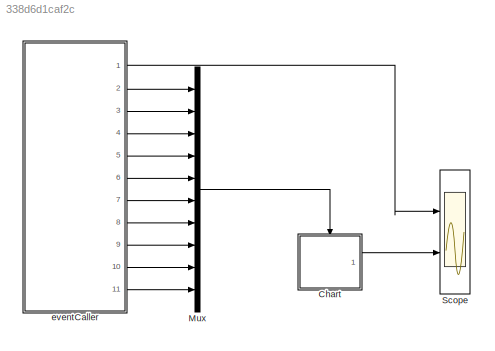
MODEL slx_338d6d1caf2c
KIND model
CONFIG AbsTol = auto
CONFIG EnableMultiTasking = on
CONFIG FixedStep = 0.1
CONFIG MaxStep = auto
CONFIG MinStep = auto
CONFIG RelTol = 1e-3
CONFIG SampleTimeConstraint = Unconstrained
CONFIG Solver = FixedStepDiscrete
CONFIG SolverName = FixedStepDiscrete
CONFIG StartTime = 0.0
CONFIG StopTime = 30.0
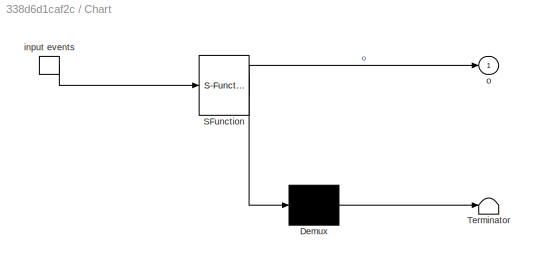
BLOCK [SubSystem] Chart
  ErrorFcn = Stateflow.Translate.translate
  PermitHierarchicalResolution = ExplicitOnly
  Ports = [0, 1, 0, 1]
  RequestExecContextInheritance = off
  SFBlockType = Chart
  TreatAsAtomicUnit = on
  Variant = off
BLOCK [Demux] Chart/ Demux 
  Outputs = 1
  Ports = [1, 1]
BLOCK [S-Function] Chart/ SFunction 
  EnableBusSupport = on
  FunctionName = sf_sfun
  PortCounts = [1 2]
  Ports = [1, 2]
  SFcnIsStateOwnerBlock = off
  SFunctionDeploymentMode = off
  Tag = Stateflow S-Function compstate 3
BLOCK [Terminator] Chart/ Terminator 
BLOCK [TriggerPort] Chart/input events
  Ports = [0, 1]
  ShowOutputPort = on
  StatesWhenEnabling = held
  TriggerType = function-call
  VariantControl = Variant
BLOCK [Outport] Chart/o
  IconDisplay = Port number
BLOCK [Mux] Mux
  DisplayOption = bar
  Inputs = 10
  Ports = [10, 1]
BLOCK [Scope] Scope
  NumInputPorts = 2
  Ports = [2]
  ScopeSpecificationString = Simulink.scopes.TimeScopeBlockCfg('CurrentConfiguration', extmgr.ConfigurationSet(extmgr.Configuration('Core','General UI',true),extmgr.Configuration('Core','Source UI',true),extmgr.Configuration('Sources','WiredSimulink',true),extmgr.Configuration('Visuals','Time Domain',true,'SerializedDisplays',{struct('MinYLimReal','-1.625','MaxYLimReal','14.625','YLabelReal','','MinYLimMag','0.00000','MaxYLim...<+1360ch>
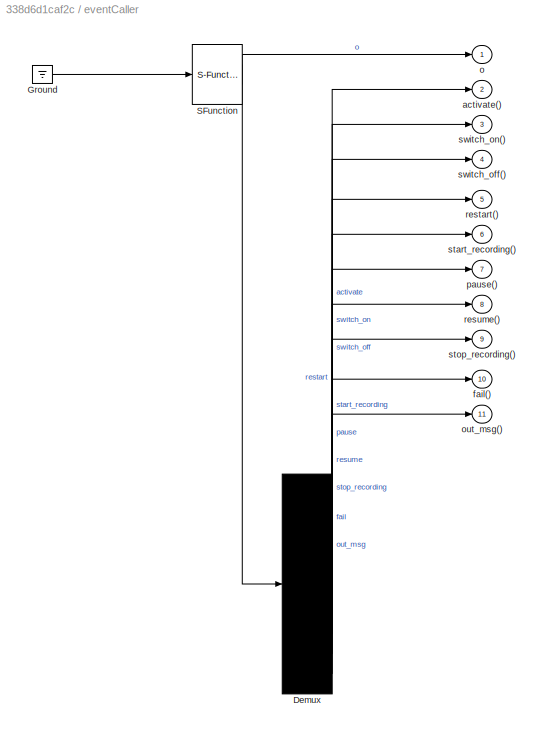
BLOCK [SubSystem] eventCaller
  ErrorFcn = Stateflow.Translate.translate
  PermitHierarchicalResolution = ExplicitOnly
  Ports = [0, 11]
  RequestExecContextInheritance = off
  SFBlockType = Chart
  TreatAsAtomicUnit = on
  Variant = off
BLOCK [Demux] eventCaller/ Demux 
  Outputs = 10
  Ports = [1, 10]
BLOCK [Ground] eventCaller/ Ground 
BLOCK [S-Function] eventCaller/ SFunction 
  EnableBusSupport = on
  FunctionName = sf_sfun
  PortCounts = [1 2]
  Ports = [1, 2]
  SFcnIsStateOwnerBlock = off
  SFunctionDeploymentMode = off
  Tag = Stateflow S-Function compstate 1
BLOCK [Outport] eventCaller/activate()
  IconDisplay = Port number
  Port = 2
BLOCK [Outport] eventCaller/fail()
  IconDisplay = Port number
  Port = 10
BLOCK [Outport] eventCaller/o
  IconDisplay = Port number
BLOCK [Outport] eventCaller/out_msg()
  IconDisplay = Port number
  Port = 11
BLOCK [Outport] eventCaller/pause()
  IconDisplay = Port number
  Port = 7
BLOCK [Outport] eventCaller/restart()
  IconDisplay = Port number
  Port = 5
BLOCK [Outport] eventCaller/resume()
  IconDisplay = Port number
  Port = 8
BLOCK [Outport] eventCaller/start_recording()
  IconDisplay = Port number
  Port = 6
BLOCK [Outport] eventCaller/stop_recording()
  IconDisplay = Port number
  Port = 9
BLOCK [Outport] eventCaller/switch_off()
  IconDisplay = Port number
  Port = 4
BLOCK [Outport] eventCaller/switch_on()
  IconDisplay = Port number
  Port = 3
LINE Chart:1 -> Scope:2
LINE Mux:1 -> Chart:trigger
LINE eventCaller:1 -> Scope:1
LINE eventCaller:10 -> Mux:9
LINE eventCaller:11 -> Mux:10
LINE eventCaller:2 -> Mux:1
LINE eventCaller:3 -> Mux:2
LINE eventCaller:4 -> Mux:3
LINE eventCaller:5 -> Mux:4
LINE eventCaller:6 -> Mux:5
LINE eventCaller:7 -> Mux:6
LINE eventCaller:8 -> Mux:7
LINE eventCaller:9 -> Mux:8
CHART eventCaller states=13 transitions=13
  STATE_LABEL 'A\nentry: o = 1;\n activate\n'
  STATE_LABEL 'B\nentry: o = 2;\n switch_on\n'
  STATE_LABEL 'C\nentry: o = 3;\n start_recording'
  STATE_LABEL 'F\nentry: o = 6;\n stop_recording'
  STATE_LABEL 'E\nentry: o = 5;\n resume\n'
  STATE_LABEL 'D\nentry: o = 4;\n pause'
  STATE_LABEL 'G\nentry: o = 7;\n start_recording'
  STATE_LABEL 'H\nentry: o = 8;\n pause\n'
  STATE_LABEL 'I\nentry: o = 9;\n stop_recording'
  STATE_LABEL 'L\nentry: o = 12;\n restart'
  STATE_LABEL 'K\nentry: o = 11;\n fail'
  STATE_LABEL 'J\nentry: o = 10;\n start_recording'
  STATE_LABEL 'M\nentry: o = 13;\n switch_off'
CHART Chart states=6 transitions=11
  STATE_LABEL 'ON\nentry: o = 1'
  STATE_LABEL 'READY\nentry: o = 5'
  STATE_LABEL 'RECORDING\nentry: o = 7'
  STATE_LABEL 'PAUSED\nentry: o = 9'
  STATE_LABEL 'start_recording'
  STATE_LABEL 'stop_recording'
  STATE_LABEL 'stop_recording'
  STATE_LABEL 'resume'
  STATE_LABEL 'pause'
  STATE_LABEL 'READY\nentry: o = 5'
  STATE_LABEL 'RECORDING\nentry: o = 7'
  STATE_LABEL 'PAUSED\nentry: o = 9'
  STATE_LABEL 'OFF\nentry: o = 0'
  STATE_LABEL 'FAULTY\nentry: o = 3'
